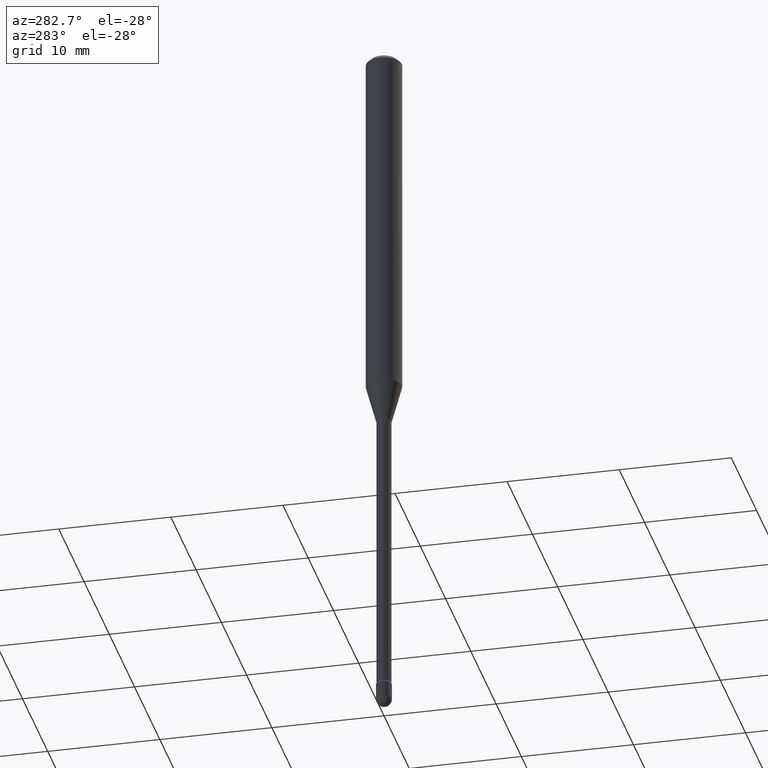
[diagram: clean part render]
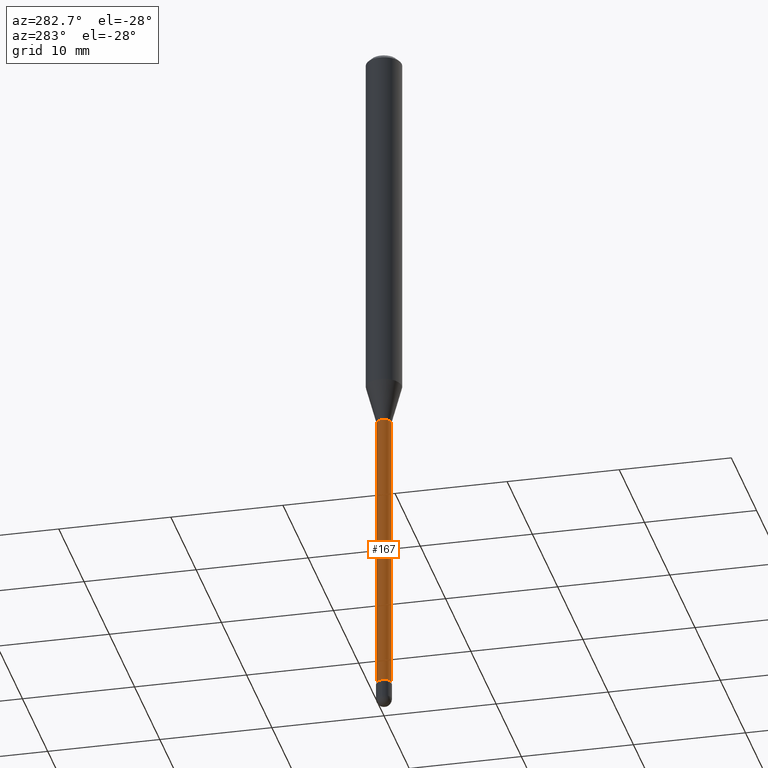
[diagram: same view with one face highlighted and labeled with its STEP entity id]
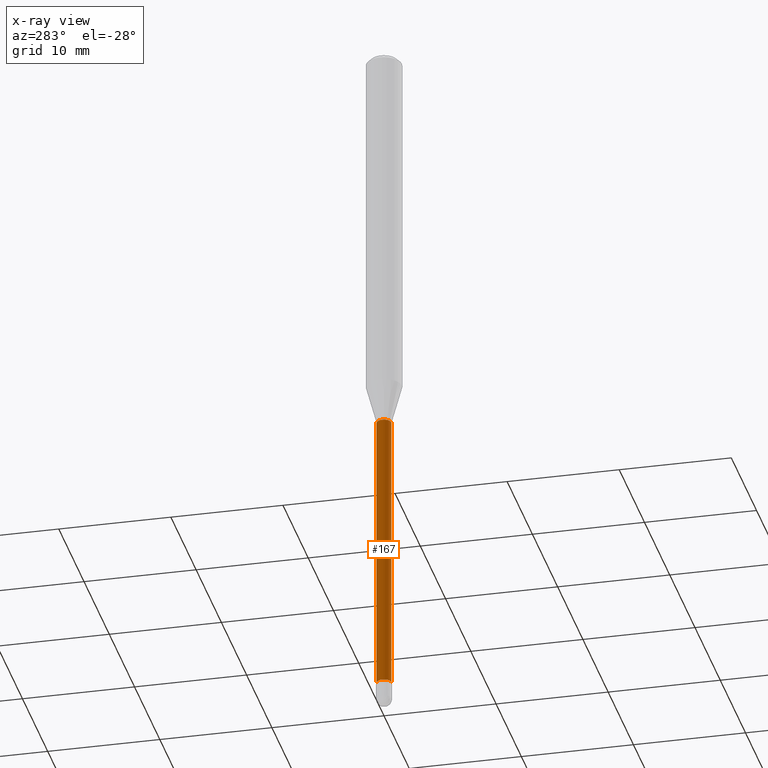
[diagram: x-ray of the same camera — body ghosted, the highlighted face saturated]
A machine part, auxiliary view. The second image highlights one B-rep face of the part: STEP entity #167.
The next image is the same camera in x-ray: the body ghosted, the highlighted face saturated — about 0% of this face is hidden behind the body in this view.
In plain terms, the highlighted cylindrical surface (edge-blend (fillet) strip) has radius 0.6566 mm, axis along (-0, 0, 1).
Its self-contained STEP definition (entity closure, byte-faithful):
#1 = DIRECTION ( 'NONE',  ( -6.982962677686265133E-15, -1.000000000000000000, 0.000000000000000000 ) ) ;
#2 = CARTESIAN_POINT ( 'NONE',  ( 3.428417186271223769E-29, -4.895066794347240348E-15, -1.401974787463810879 ) ) ;
#10 = CYLINDRICAL_SURFACE ( 'NONE', #275, 0.02585000000000002920 ) ;
#15 = DIRECTION ( 'NONE',  ( -2.445420001078101296E-29, 3.491551230534233844E-15, 1.000000000000000000 ) ) ;
#30 = VERTEX_POINT ( 'NONE', #345 ) ;
#35 = EDGE_CURVE ( 'NONE', #452, #30, #79, .T. ) ;
#55 = LINE ( 'NONE', #274, #414 ) ;
#73 = DIRECTION ( 'NONE',  ( -2.445420001078101296E-29, 3.491551230534233844E-15, 1.000000000000000000 ) ) ;
#79 = CIRCLE ( 'NONE', #431, 0.02584999999999999451 ) ;
#80 = VECTOR ( 'NONE', #73, 39.37007874015748143 ) ;
#110 = CARTESIAN_POINT ( 'NONE',  ( 1.895372747640661167E-16, 0.02584999999999164702, -2.410160592130893509 ) ) ;
#130 = DIRECTION ( 'NONE',  ( -6.982962677686266711E-15, -1.000000000000000000, 0.000000000000000000 ) ) ;
#143 = CARTESIAN_POINT ( 'NONE',  ( -1.169113584055446105E-44, 1.669184350826100908E-30, 4.780733988912460139E-16 ) ) ;
#145 = EDGE_LOOP ( 'NONE', ( #532, #207, #394, #402 ) ) ;
#167 = ADVANCED_FACE ( 'NONE', ( #312 ), #10, .T. ) ;
#200 = DIRECTION ( 'NONE',  ( -2.445420001078101296E-29, 3.491551230534234238E-15, 1.000000000000000000 ) ) ;
#207 = ORIENTED_EDGE ( 'NONE', *, *, #239, .T. ) ;
#234 = CARTESIAN_POINT ( 'NONE',  ( -1.805095852181314535E-16, -0.02585000000000847384, -2.410160592130893509 ) ) ;
#239 = EDGE_CURVE ( 'NONE', #287, #519, #265, .T. ) ;
#263 = DIRECTION ( 'NONE',  ( -2.445420001078101296E-29, 3.491551230534234238E-15, 1.000000000000000000 ) ) ;
#265 = CIRCLE ( 'NONE', #307, 0.02585000000000006043 ) ;
#270 = DIRECTION ( 'NONE',  ( -6.982962677686265922E-15, -1.000000000000000000, 3.491551230534236210E-15 ) ) ;
#274 = CARTESIAN_POINT ( 'NONE',  ( -1.805095852181901743E-16, -0.02585000000000002920, 5.683299982005562177E-16 ) ) ;
#275 = AXIS2_PLACEMENT_3D ( 'NONE', #143, #200, #270 ) ;
#287 = VERTEX_POINT ( 'NONE', #110 ) ;
#307 = AXIS2_PLACEMENT_3D ( 'NONE', #479, #263, #1 ) ;
#312 = FACE_OUTER_BOUND ( 'NONE', #145, .T. ) ;
#345 = CARTESIAN_POINT ( 'NONE',  ( -1.805095852181556863E-16, -0.02585000000000488990, -1.401974787463810879 ) ) ;
#366 = CARTESIAN_POINT ( 'NONE',  ( 1.836752971939860809E-16, 0.02585000000000002920, 3.878167995819360074E-16 ) ) ;
#394 = ORIENTED_EDGE ( 'NONE', *, *, #511, .T. ) ;
#402 = ORIENTED_EDGE ( 'NONE', *, *, #35, .F. ) ;
#405 = LINE ( 'NONE', #366, #80 ) ;
#414 = VECTOR ( 'NONE', #15, 39.37007874015748143 ) ;
#431 = AXIS2_PLACEMENT_3D ( 'NONE', #2, #482, #130 ) ;
#452 = VERTEX_POINT ( 'NONE', #472 ) ;
#472 = CARTESIAN_POINT ( 'NONE',  ( 1.836752971940450483E-16, 0.02584999999999509565, -1.401974787463810879 ) ) ;
#479 = CARTESIAN_POINT ( 'NONE',  ( 5.893854917807127540E-29, -8.415199181239739189E-15, -2.410160592130893509 ) ) ;
#482 = DIRECTION ( 'NONE',  ( -2.445420001078101296E-29, 3.491551230534234238E-15, 1.000000000000000000 ) ) ;
#511 = EDGE_CURVE ( 'NONE', #519, #30, #55, .T. ) ;
#519 = VERTEX_POINT ( 'NONE', #234 ) ;
#532 = ORIENTED_EDGE ( 'NONE', *, *, #557, .F. ) ;
#557 = EDGE_CURVE ( 'NONE', #287, #452, #405, .T. ) ;